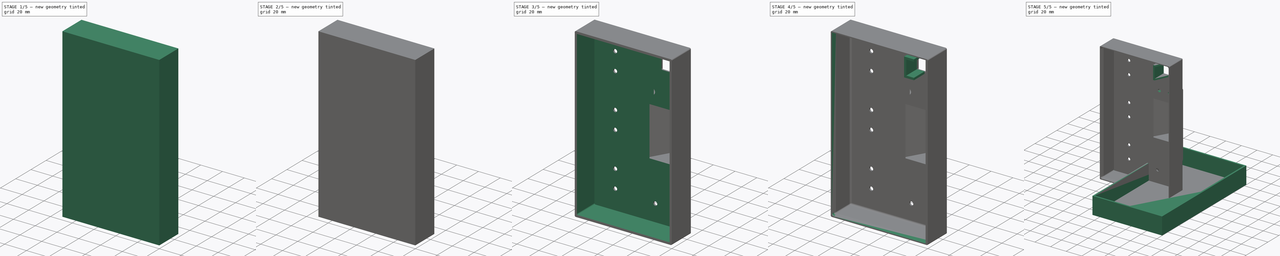
[diagram: build sequence overview — one tinted view per stage of 5, left to right]
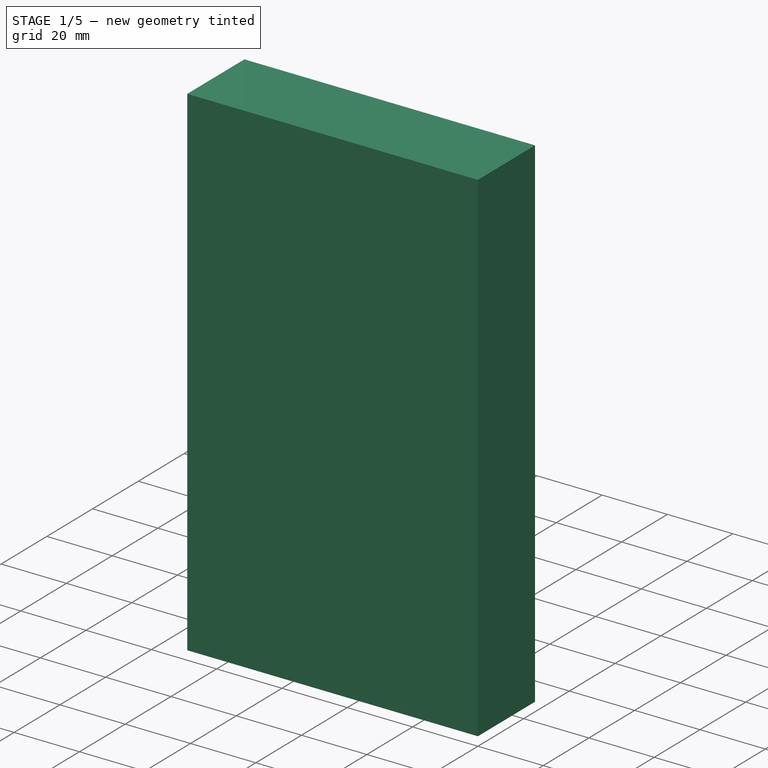
[diagram: stage 1 of 5 — iso view after this stage's code; geometry added in this stage tinted green]
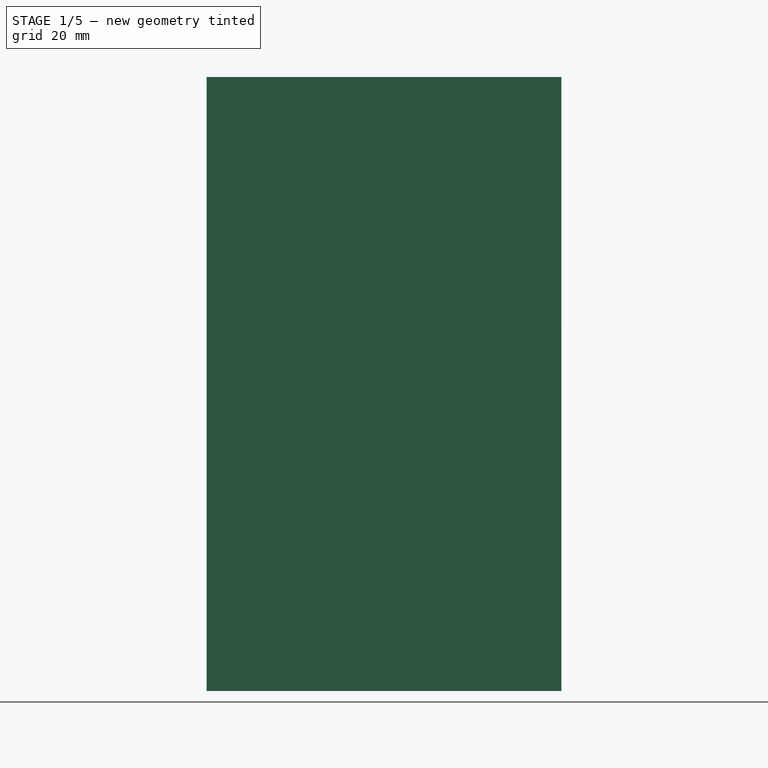
[diagram: stage 1 of 5 — front view after this stage's code; geometry added in this stage tinted green]
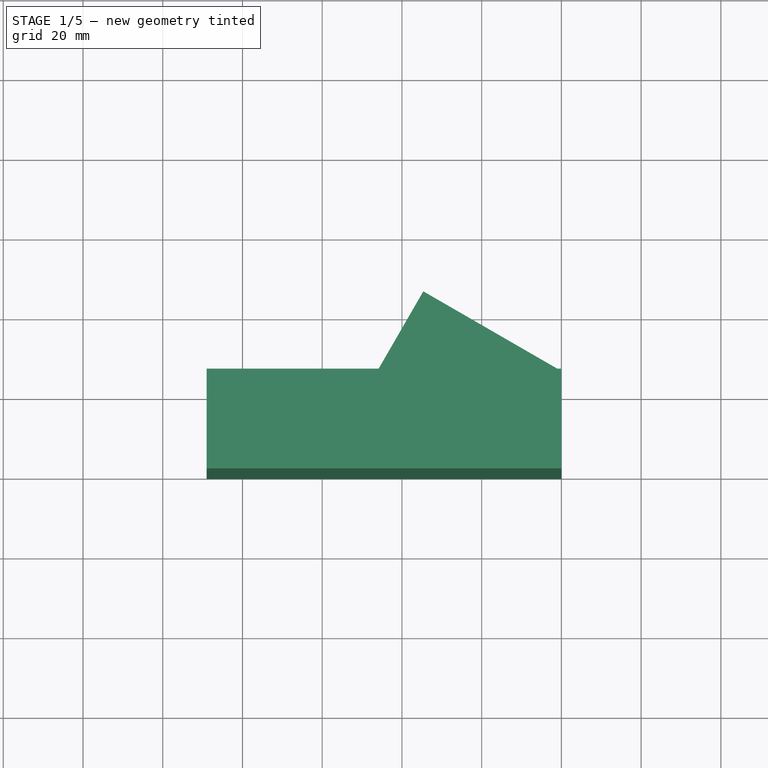
[diagram: stage 1 of 5 — top view after this stage's code; geometry added in this stage tinted green]
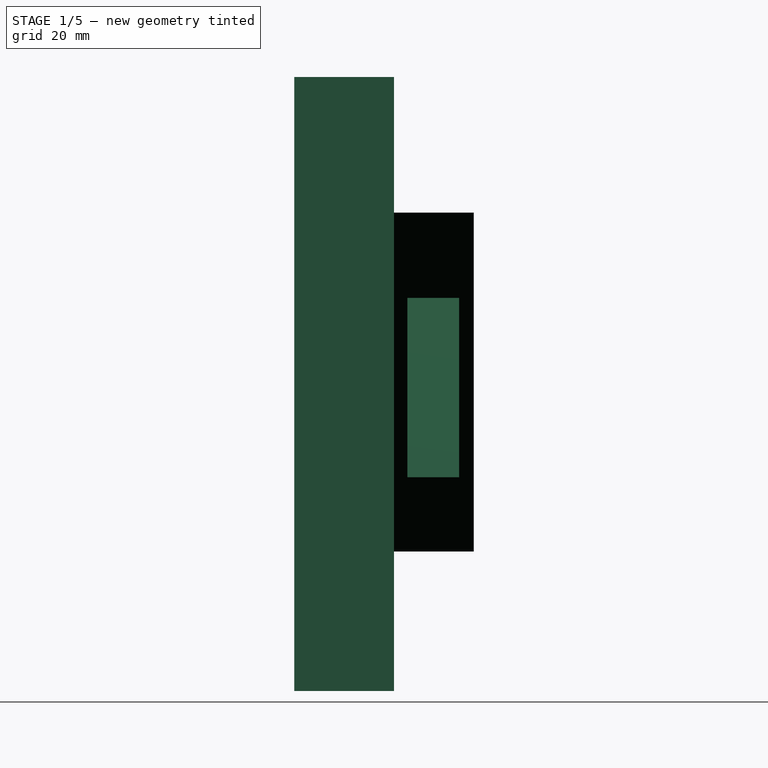
[diagram: stage 1 of 5 — right view after this stage's code; geometry added in this stage tinted green]
FCSTD DOCUMENT  (FreeCAD 0.20R29177 (Git))
Label: power_supply
License: All rights reserved
LicenseURL: http://en.wikipedia.org/wiki/All_rights_reserved
objects: Sketcher::SketchObject×10, PartDesign::Pocket×6, PartDesign::Pad×4, PartDesign::Plane×3, PartDesign::Fillet×3, PartDesign::Chamfer×3, PartDesign::Body×2, Spreadsheet::Sheet×1, PartDesign::SubtractiveBox×1, PartDesign::LinearPattern×1
note: 50 computed .brp shape members not serialized (recipe doc carries the construction recipe); baked Part::Feature solids carry a one-line shape summary decoded from their .brp

FEATURE [PartDesign::Body] Body
  Group = -> [Sketch,Pad,Sketch001,Pad001]
  Origin = -> Origin
  Tip = -> Pad001
FEATURE [Sketcher::SketchObject] Sketch002
  FullyConstrained = true
  MapMode = 5
  Support = -> [XY_Plane001]
  expr: Constraints[12] = <<Parameters>>.width + 2 * <<Parameters>>.thikness
  sketch-geometry (6):
    g0: LineSegment StartX=-89 StartY=0 StartZ=0 EndX=-89 EndY=25 EndZ=0
    g1: LineSegment StartX=-89 StartY=25 StartZ=0 EndX=-46.188 EndY=25 EndZ=0
    g2: LineSegment StartX=-46.188 StartY=25 StartZ=0 EndX=-34.641 EndY=45 EndZ=0
    g3: LineSegment StartX=-34.641 StartY=45 StartZ=0 EndX=0 EndY=25 EndZ=0
    g4: LineSegment StartX=0 StartY=25 StartZ=0 EndX=0 EndY=0 EndZ=0
    g5: LineSegment StartX=0 StartY=0 StartZ=0 EndX=-89 EndY=0 EndZ=0
  constraints (18):
    c: PointOnObject(g0,g-1)
    c: Vertical(g0)
    c: Coincident(g0,g1)
    c: Horizontal(g1)
    c: Coincident(g1,g2)
    c: Coincident(g2,g3)
    c: Coincident(g3,g4)
    c: Coincident(g4,g5)
    c: Coincident(g5,g0)
    c: Horizontal(g5)
    c: Vertical(g4)
    c: Equal(g4,g0)
    c: DistanceX(g5,g5) = 89
    c: DistanceY(g4,g4) = 25
    c: DistanceY(g3,g2) = 20
    c: Angle(g3,g5) = 0.523599
    c: Angle(g5,g2) = 1.0472
    c: DistanceX(g-1,g4) = 0
FEATURE [PartDesign::Pad] Pad002
  Direction = (0,0,1)
  Length = 154
  Length2 = 100
  Profile = -> Sketch002
  ReferenceAxis = -> Sketch002 [N_Axis]
  Type = 0
  expr: Length = <<Parameters>>.height + <<Parameters>>.thikness * 2
FEATURE [PartDesign::Plane] DatumPlane
  Length = 142.57
  MapMode = 5
  Placement = pos=(0,25,0) rot=(0,0.707107,0.707107;3.14159rad)
  ResizeMode = 0
  Support = -> [Pad002]
  Width = 207.57
FEATURE [PartDesign::SubtractiveBox] Box
  AttacherType = Attacher::AttachEngine3D
  AttachmentOffset = pos=(-47,25,0) rot=(0,0,1;0rad)
  BaseFeature = -> Pad002
  Height = 35
  Length = 50
  MapMode = 5
  Placement = pos=(-47,25,0) rot=(0,0,1;0rad)
  Support = -> [XY_Plane001]
  Width = 30
  expr: Length = <<Parameters>>.panel_height
  expr: Width = <<Parameters>>.panel_left_distance
FEATURE [PartDesign::LinearPattern] LinearPattern
  BaseFeature = -> Box
  Direction = -> Z_Axis001
  Length = 120
  Occurrences = 2
  Originals = -> [Box]
  Placement = pos=(-47,25,0) rot=(0,0,1;0rad)
FEATURE [PartDesign::Plane] DatumPlane001  label="KontrolPlane"
  Length = 164.67
  MapMode = 5
  Placement = pos=(-35.25,45.3516,0) rot=(0.186157,0.694747,0.694747;2.77349rad)
  ResizeMode = 0
  Support = -> [LinearPattern]
  Width = 209.943
FEATURE [Sketcher::SketchObject] Sketch003
  FullyConstrained = true
  MapMode = 5
  Placement = pos=(-35.25,45.3516,0) rot=(0.186157,0.694747,0.694747;2.77349rad)
  Support = -> [DatumPlane001]
  sketch-geometry (4):
    g0: LineSegment StartX=-34 StartY=53.6 StartZ=0 EndX=-8 EndY=53.6 EndZ=0
    g1: LineSegment StartX=-8 StartY=53.6 StartZ=0 EndX=-8 EndY=98.6 EndZ=0
    g2: LineSegment StartX=-8 StartY=98.6 StartZ=0 EndX=-34 EndY=98.6 EndZ=0
    g3: LineSegment StartX=-34 StartY=98.6 StartZ=0 EndX=-34 EndY=53.6 EndZ=0
  constraints (12):
    c: Coincident(g0,g1)
    c: Coincident(g1,g2)
    c: Coincident(g2,g3)
    c: Coincident(g3,g0)
    c: Horizontal(g0)
    c: Horizontal(g2)
    c: Vertical(g1)
    c: Vertical(g3)
    c: DistanceY(g-1,g0) = 53.6
    c: DistanceX(g2,g2) = 26
    c: DistanceY(g3,g3) = 45
    c: DistanceX(g0,g-1) = 8
FEATURE [PartDesign::Pocket] Pocket
  BaseFeature = -> LinearPattern
  Direction = (-0.5,-0.866025,2e-16)
  Length = 20
  Length2 = 5
  Placement = pos=(-47,25,0) rot=(0,0,1;0rad)
  Profile = -> Sketch003
  ReferenceAxis = -> Sketch003 [N_Axis]
  Type = 0
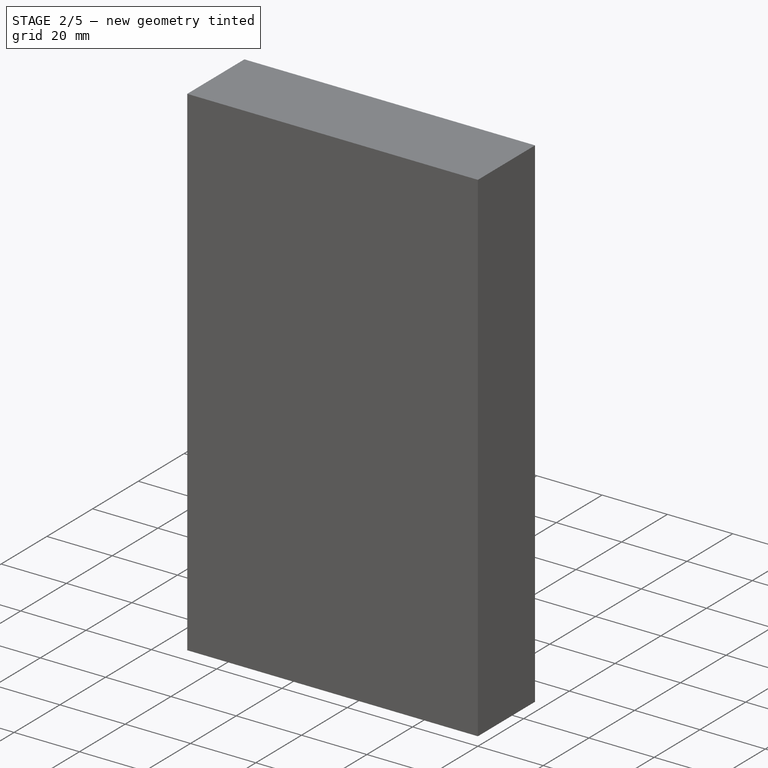
[diagram: stage 2 of 5 — iso view after this stage's code; geometry added in this stage tinted green]
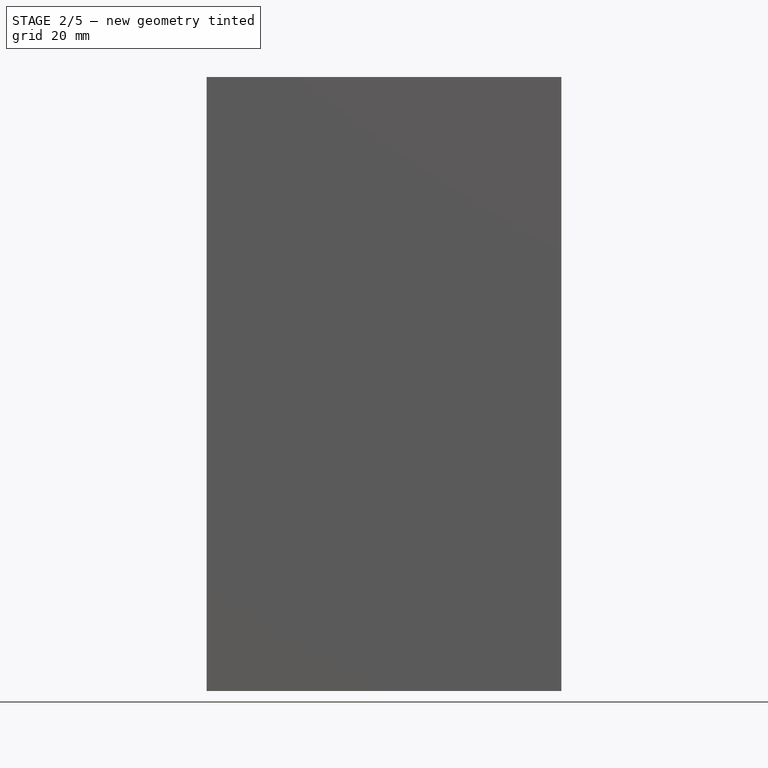
[diagram: stage 2 of 5 — front view after this stage's code; geometry added in this stage tinted green]
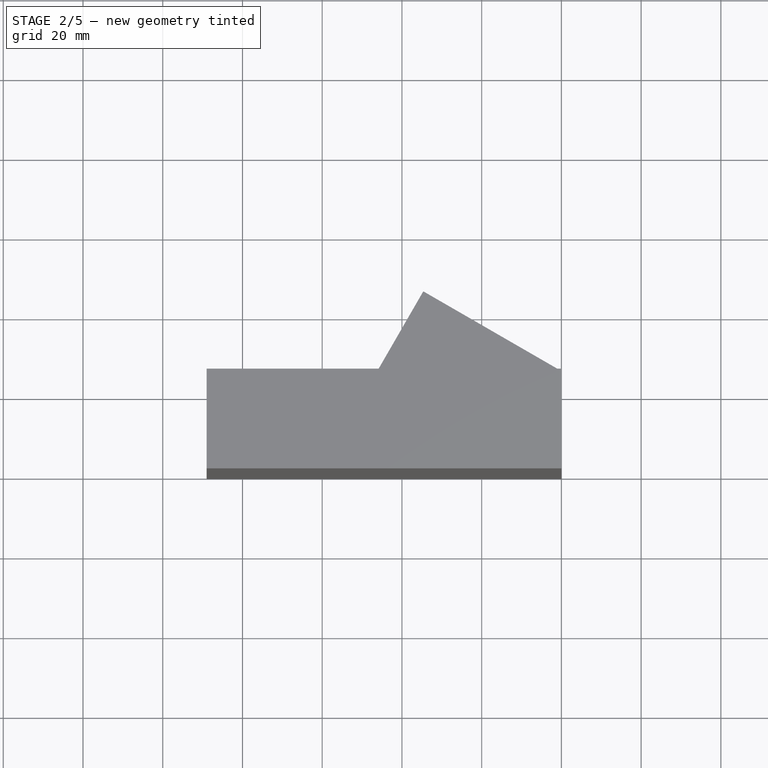
[diagram: stage 2 of 5 — top view after this stage's code; geometry added in this stage tinted green]
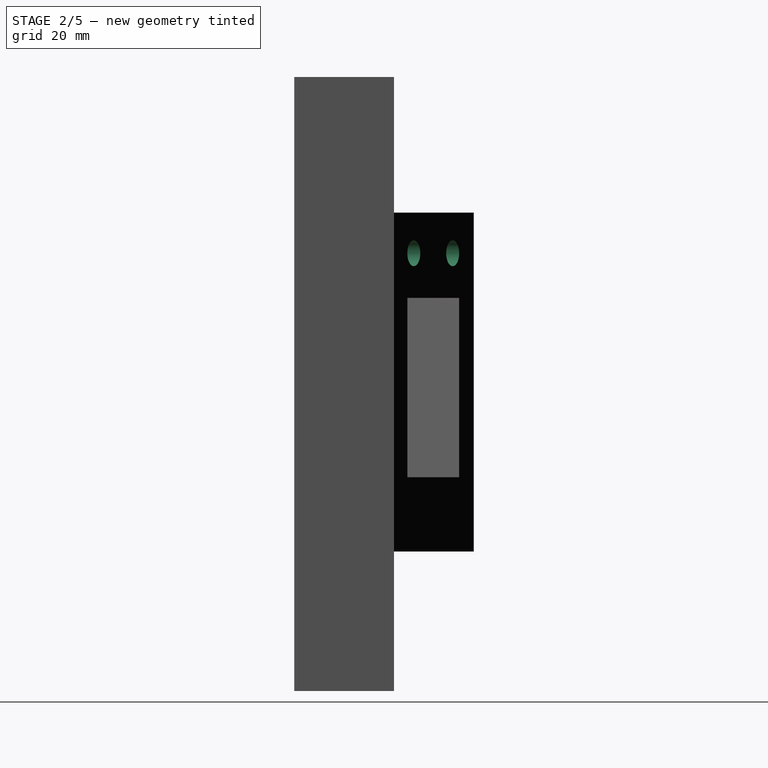
[diagram: stage 2 of 5 — right view after this stage's code; geometry added in this stage tinted green]
FEATURE [Sketcher::SketchObject] Sketch004
  ExternalGeometry = -> [Pocket]
  FullyConstrained = true
  MapMode = 5
  Placement = pos=(-35.25,45.3516,0) rot=(0.186157,0.694747,0.694747;2.77349rad)
  Support = -> [DatumPlane001]
  sketch-geometry (2):
    g0: Circle CenterX=-30.75 CenterY=109.8 CenterZ=0 NormalX=0 NormalY=0 NormalZ=1 AngleXU=0 Radius=3.25
    g1: Circle CenterX=-11.25 CenterY=109.8 CenterZ=0 NormalX=0 NormalY=0 NormalZ=1 AngleXU=0 Radius=3.25
  constraints (6):
    c: Equal(g0,g1)
    c: DistanceY(g-3,g0) = 11.2
    c: Diameter(g0) = 6.5
    c: DistanceX(g-4,g0) = 3.25
    c: DistanceY(g-3,g1) = 11.2
    c: DistanceX(g1,g-3) = 3.25
FEATURE [PartDesign::Pocket] Pocket001  label="RotartControlHole"
  BaseFeature = -> Pocket
  Direction = (-0.5,-0.866025,2e-16)
  Length = 18
  Length2 = 5
  Placement = pos=(-47,25,0) rot=(0,0,1;0rad)
  Profile = -> Sketch004
  ReferenceAxis = -> Sketch004 [N_Axis]
  Type = 0
FEATURE [Sketcher::SketchObject] Sketch005
  ExternalGeometry = -> [Pocket001]
  FullyConstrained = true
  MapMode = 5
  Placement = pos=(-47,25,0) rot=(0,0.707107,0.707107;3.14159rad)
  Support = -> [Pocket001]
  expr: Constraints[8] = <<Parameters>>.usb_hole_width
  expr: Constraints[9] = <<Parameters>>.usb_hole_height
  sketch-geometry (4):
    g0: LineSegment StartX=-37 StartY=130 StartZ=0 EndX=-21.5 EndY=130 EndZ=0
    g1: LineSegment StartX=-21.5 StartY=130 StartZ=0 EndX=-21.5 EndY=144 EndZ=0
    g2: LineSegment StartX=-21.5 StartY=144 StartZ=0 EndX=-37 EndY=144 EndZ=0
    g3: LineSegment StartX=-37 StartY=144 StartZ=0 EndX=-37 EndY=130 EndZ=0
  constraints (12):
    c: Coincident(g0,g1)
    c: Coincident(g1,g2)
    c: Coincident(g2,g3)
    c: Coincident(g3,g0)
    c: Horizontal(g0)
    c: Horizontal(g2)
    c: Vertical(g1)
    c: Vertical(g3)
    c: DistanceY(g3,g3) = 14
    c: DistanceX(g2,g2) = 15.5
    c: DistanceX(g-4,g0) = 10
    c: DistanceY(g-4,g0) = 10
FEATURE [PartDesign::Pocket] Pocket002  label="Usb"
  BaseFeature = -> Pocket001
  Direction = (0,-1,2e-16)
  Length = 17
  Length2 = 5
  Placement = pos=(-47,25,0) rot=(0,0,1;0rad)
  Profile = -> Sketch005
  ReferenceAxis = -> Sketch005 [N_Axis]
  Type = 0
  expr: Length = <<Parameters>>.usb_hole_dept
FEATURE [Sketcher::SketchObject] Sketch006
  ExternalGeometry = -> [Pocket002]
  FullyConstrained = true
  MapMode = 5
  Placement = pos=(-47,25,0) rot=(0,0.707107,0.707107;3.14159rad)
  Support = -> [Pocket002]
  sketch-geometry (8):
    g0: Circle CenterX=-15.812 CenterY=17.5 CenterZ=0 NormalX=0 NormalY=0 NormalZ=1 AngleXU=0 Radius=1.8
    g1: Circle CenterX=-31.962 CenterY=17.5 CenterZ=0 NormalX=0 NormalY=0 NormalZ=1 AngleXU=0 Radius=1.8
    g2: Circle CenterX=21 CenterY=20 CenterZ=0 NormalX=0 NormalY=0 NormalZ=1 AngleXU=0 Radius=1.8
    g3: Circle CenterX=21 CenterY=36.5 CenterZ=0 NormalX=0 NormalY=0 NormalZ=1 AngleXU=0 Radius=1.8
    g4: Circle CenterX=21 CenterY=68.75 CenterZ=0 NormalX=0 NormalY=0 NormalZ=1 AngleXU=0 Radius=1.8
    g5: Circle CenterX=21 CenterY=85.25 CenterZ=0 NormalX=0 NormalY=0 NormalZ=1 AngleXU=0 Radius=1.8
    g6: Circle CenterX=21 CenterY=117.5 CenterZ=0 NormalX=0 NormalY=0 NormalZ=1 AngleXU=0 Radius=1.8
    g7: Circle CenterX=21 CenterY=134 CenterZ=0 NormalX=0 NormalY=0 NormalZ=1 AngleXU=0 Radius=1.8
  constraints (25):
    c: Equal(g1,g0)
    c: Equal(g0,g2)
    c: Equal(g2,g3)
    c: Equal(g3,g4)
    c: Equal(g4,g5)
    c: Equal(g5,g6)
    c: Equal(g6,g7)
    c: DistanceX(g1,g0) = 16.15
    c: DistanceX(g2,g3) = 0
    c: DistanceX(g5,g4) = 0
    c: DistanceX(g7,g6) = 0
    c: DistanceX(g3,g4) = 0
    c: DistanceX(g6,g5) = 0
    c: DistanceY(g2,g3) = 16.5
    c: DistanceY(g4,g5) = 16.5
    c: DistanceY(g6,g7) = 16.5
    c: DistanceY(g-3,g2) = 20
    c: DistanceY(g7,g-4) = 20
    c: DistanceY(g3,g4) = 32.25
    c: DistanceX(g2,g-3) = 21
    c: Diameter(g1) = 3.6
    c: DistanceY(g0,g1) = 0
    c: DistanceY(g-6,g-6) = 35
    c: DistanceY(g-6,g0) = 17.5
    c: DistanceX(g0,g-6) = 15
FEATURE [PartDesign::Pocket] Pocket003  label="PowerJack"
  BaseFeature = -> Pocket002
  Direction = (0,-1,2e-16)
  Length = 5
  Length2 = 5
  Placement = pos=(-47,25,0) rot=(0,0,1;0rad)
  Profile = -> Sketch006
  ReferenceAxis = -> Sketch006 [N_Axis]
  Type = 0
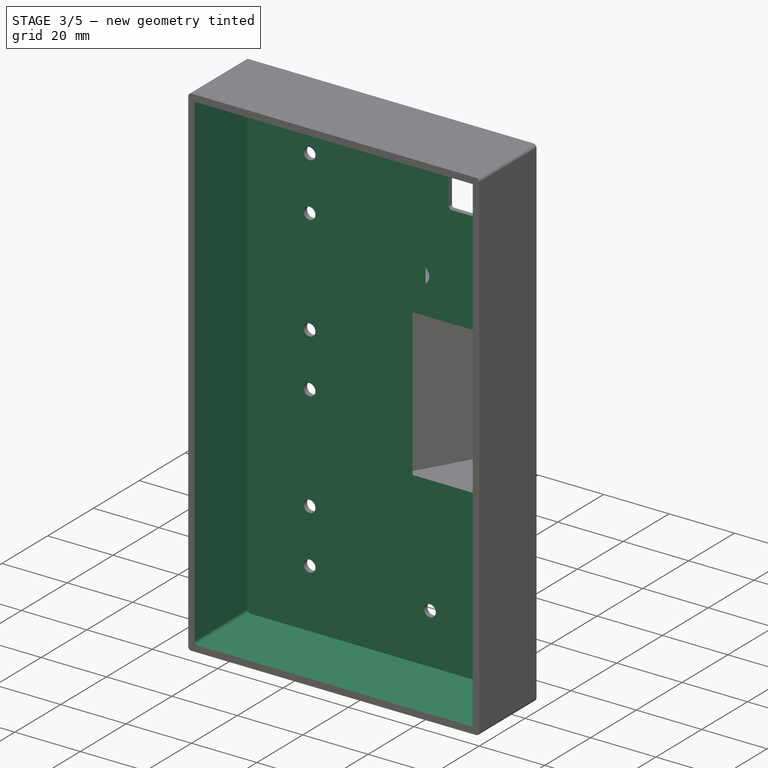
[diagram: stage 3 of 5 — iso view after this stage's code; geometry added in this stage tinted green]
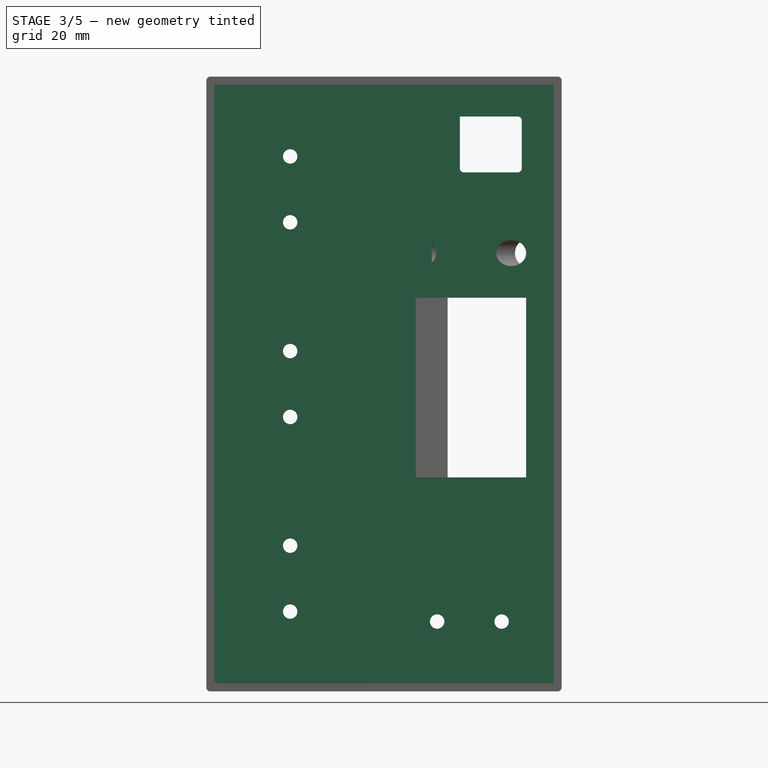
[diagram: stage 3 of 5 — front view after this stage's code; geometry added in this stage tinted green]
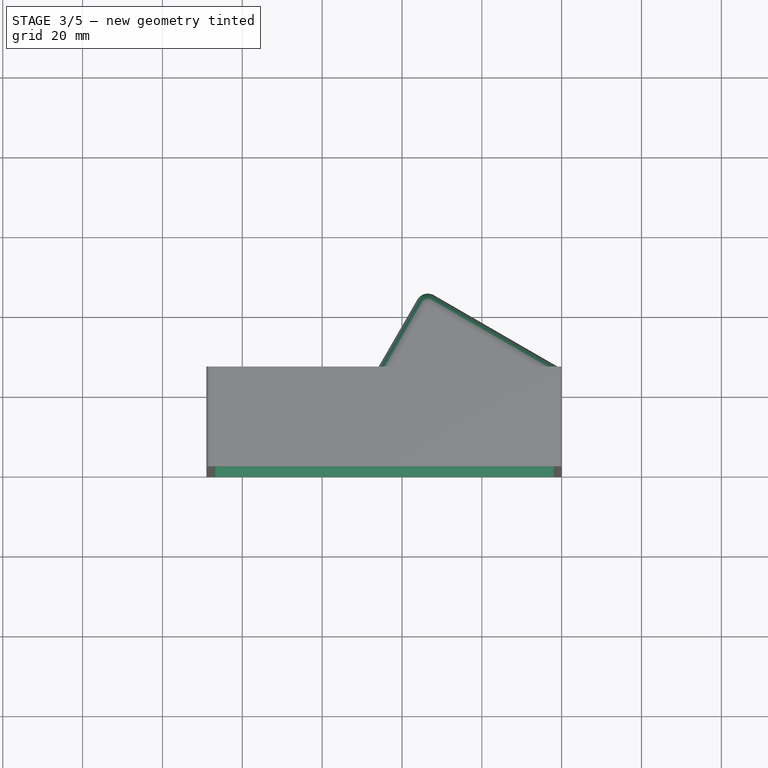
[diagram: stage 3 of 5 — top view after this stage's code; geometry added in this stage tinted green]
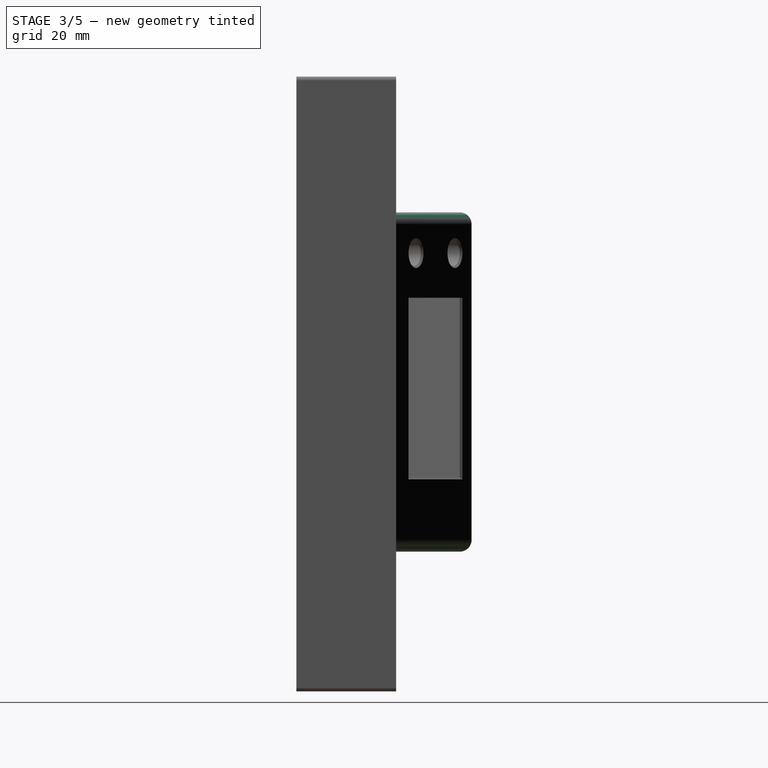
[diagram: stage 3 of 5 — right view after this stage's code; geometry added in this stage tinted green]
FEATURE [Sketcher::SketchObject] Sketch007
  ExternalGeometry = -> [Pocket003]
  FullyConstrained = true
  MapMode = 5
  Placement = pos=(-47,0,0) rot=(1,0,0;1.5708rad)
  Support = -> [Pocket003]
  expr: Constraints[10] = <<Parameters>>.thikness
  expr: Constraints[11] = <<Parameters>>.thikness
  expr: Constraints[8] = <<Parameters>>.thikness
  expr: Constraints[9] = <<Parameters>>.thikness
  sketch-geometry (4):
    g0: LineSegment StartX=-40 StartY=152 StartZ=0 EndX=45 EndY=152 EndZ=0
    g1: LineSegment StartX=45 StartY=152 StartZ=0 EndX=45 EndY=2 EndZ=0
    g2: LineSegment StartX=45 StartY=2 StartZ=0 EndX=-40 EndY=2 EndZ=0
    g3: LineSegment StartX=-40 StartY=2 StartZ=0 EndX=-40 EndY=152 EndZ=0
  constraints (12):
    c: Coincident(g0,g1)
    c: Coincident(g1,g2)
    c: Coincident(g2,g3)
    c: Coincident(g3,g0)
    c: Horizontal(g0)
    c: Horizontal(g2)
    c: Vertical(g1)
    c: Vertical(g3)
    c: DistanceX(g-4,g0) = 2
    c: DistanceY(g0,g-4) = 2
    c: DistanceY(g-3,g1) = 2
    c: DistanceX(g1,g-3) = 2
FEATURE [PartDesign::Pocket] Pocket004  label="Back"
  BaseFeature = -> Pocket003
  Direction = (0,1,-2e-16)
  Length = 23
  Length2 = 5
  Placement = pos=(-47,25,0) rot=(0,0,1;0rad)
  Profile = -> Sketch007
  ReferenceAxis = -> Sketch007 [N_Axis]
  Type = 0
FEATURE [PartDesign::Fillet] Fillet  label="Panel"
  Base = -> Pocket004 [Edge45,Edge67,Edge44,Edge46,Edge68]
  BaseFeature = -> Pocket004
  Placement = pos=(-47,25,0) rot=(0,0,1;0rad)
  Radius = 3
  SupportTransform = false
  UseAllEdges = false
FEATURE [PartDesign::Chamfer] Chamfer
  Angle = 45
  Base = -> Fillet [Edge104,Edge103,Edge37,Edge38,Edge36,Edge39,Edge11,Edge12,Edge13,Edge14,Edge15,Edge16,Edge28,Edge27,Edge106,Edge107,Edge109,Edge108,Edge105]
  BaseFeature = -> Fillet
  ChamferType = 0
  FlipDirection = false
  Placement = pos=(-47,25,0) rot=(0,0,1;0rad)
  Size = 0.5
  Size2 = 1
  SupportTransform = false
  UseAllEdges = false
FEATURE [PartDesign::Fillet] Fillet001  label="Corner"
  Base = -> Chamfer [Edge48,Edge45,Edge47,Edge44,Edge135,Edge137,Edge136,Edge134]
  BaseFeature = -> Chamfer
  Placement = pos=(-47,25,0) rot=(0,0,1;0rad)
  Radius = 1
  SupportTransform = false
  UseAllEdges = false
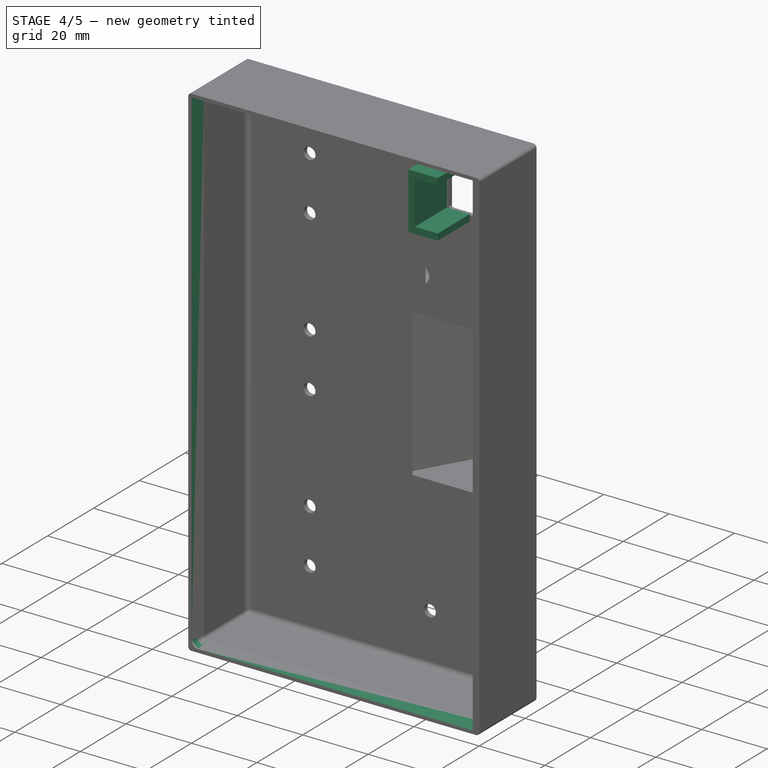
[diagram: stage 4 of 5 — iso view after this stage's code; geometry added in this stage tinted green]
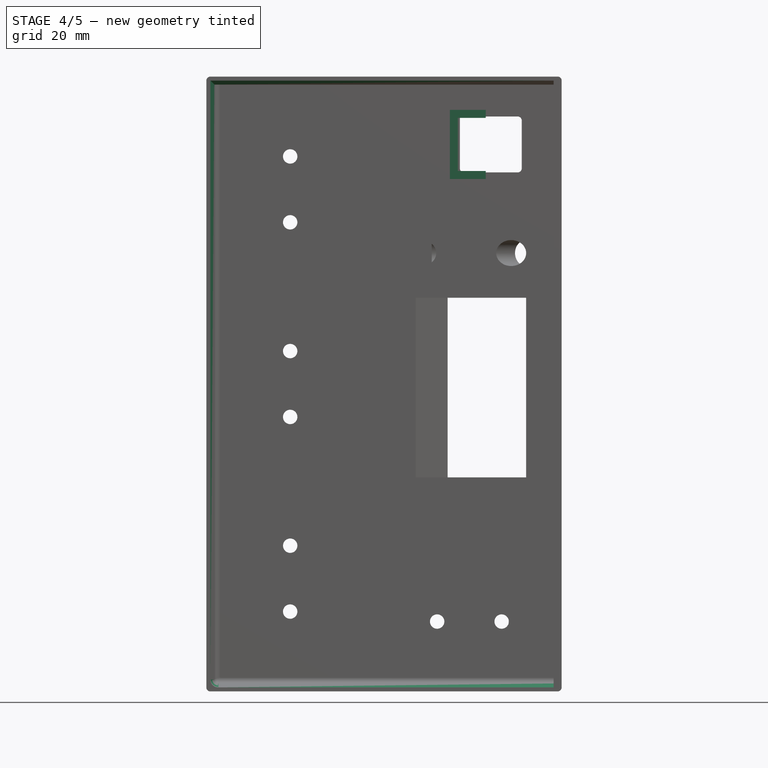
[diagram: stage 4 of 5 — front view after this stage's code; geometry added in this stage tinted green]
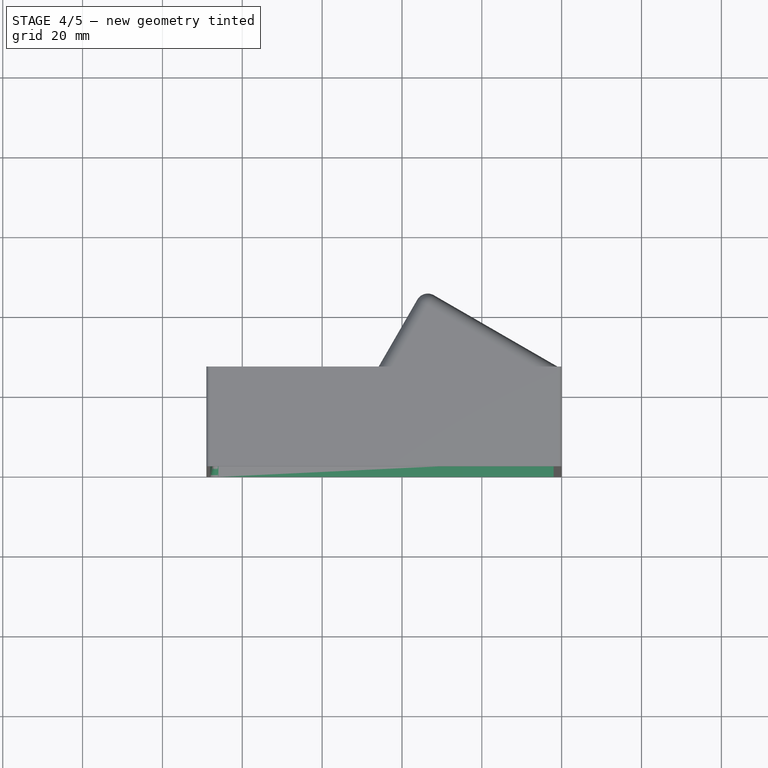
[diagram: stage 4 of 5 — top view after this stage's code; geometry added in this stage tinted green]
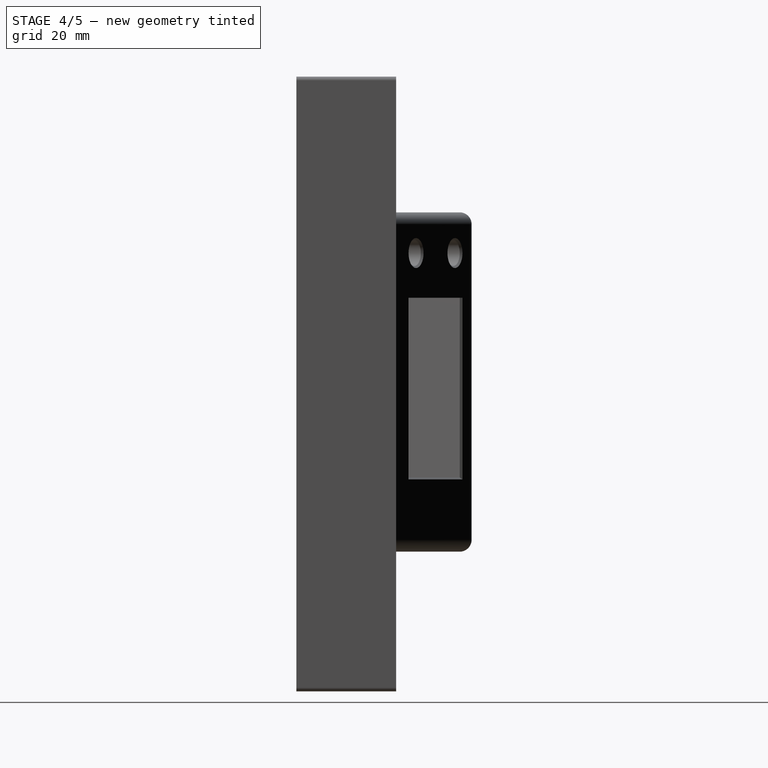
[diagram: stage 4 of 5 — right view after this stage's code; geometry added in this stage tinted green]
FEATURE [PartDesign::Chamfer] Chamfer001  label="BackFill"
  Angle = 45
  Base = -> Fillet001 [Edge73,Edge72,Edge75,Edge74]
  BaseFeature = -> Fillet001
  ChamferType = 1
  FlipDirection = false
  Placement = pos=(-47,25,0) rot=(0,0,1;0rad)
  Size = 1
  Size2 = 4
  SupportTransform = false
  UseAllEdges = false
FEATURE [PartDesign::Fillet] Fillet002
  Base = -> Chamfer001 [Edge56]
  BaseFeature = -> Chamfer001
  Placement = pos=(-47,25,0) rot=(0,0,1;0rad)
  Radius = 1.5
  SupportTransform = false
  UseAllEdges = false
FEATURE [Sketcher::SketchObject] Sketch009
  AttachmentOffset = pos=(0,0,-23) rot=(0,0,1;0rad)
  FullyConstrained = true
  MapMode = 5
  Placement = pos=(0,23,5.1e-15) rot=(1,0,0;1.5708rad)
  Support = -> [XZ_Plane001]
  sketch-geometry (8):
    g0: LineSegment StartX=-26 StartY=130.35 StartZ=0 EndX=-26 EndY=143.65 EndZ=0
    g1: LineSegment StartX=-26 StartY=130.35 StartZ=0 EndX=-19 EndY=130.35 EndZ=0
    g2: LineSegment StartX=-19 StartY=130.35 StartZ=0 EndX=-19 EndY=128.35 EndZ=0
    g3: LineSegment StartX=-19 StartY=128.35 StartZ=0 EndX=-28 EndY=128.35 EndZ=0
    g4: LineSegment StartX=-26 StartY=143.65 StartZ=0 EndX=-19 EndY=143.65 EndZ=0
    g5: LineSegment StartX=-19 StartY=143.65 StartZ=0 EndX=-19 EndY=145.65 EndZ=0
    g6: LineSegment StartX=-19 StartY=145.65 StartZ=0 EndX=-28 EndY=145.65 EndZ=0
    g7: LineSegment StartX=-28 StartY=145.65 StartZ=0 EndX=-28 EndY=128.35 EndZ=0
  constraints (24):
    c: Vertical(g0)
    c: Coincident(g1,g2)
    c: Coincident(g2,g3)
    c: Horizontal(g1)
    c: Horizontal(g3)
    c: Vertical(g2)
    c: Coincident(g4,g5)
    c: Coincident(g5,g6)
    c: Coincident(g6,g7)
    c: Horizontal(g4)
    c: Horizontal(g6)
    c: Vertical(g5)
    c: Vertical(g7)
    c: DistanceX(g3,g3) = 9
    c: DistanceX(g6,g6) = 9
    c: DistanceY(g0,g0) = 13.3
    c: DistanceY(g2,g2) = 2
    c: DistanceY(g5,g5) = 2
    c: DistanceX(g0,g-1) = 26
    c: Coincident(g4,g0)
    c: Coincident(g1,g0)
    c: DistanceX(g3,g0) = 2
    c: DistanceY(g-1,g0) = 130.35
    c: Coincident(g7,g3)
FEATURE [PartDesign::Pad] Pad004
  BaseFeature = -> Fillet002
  Direction = (0,-1,-2e-16)
  Length = 14
  Length2 = 10
  Placement = pos=(-47,25,0) rot=(0,0,1;0rad)
  Profile = -> Sketch009
  ReferenceAxis = -> Sketch009 [N_Axis]
  Type = 0
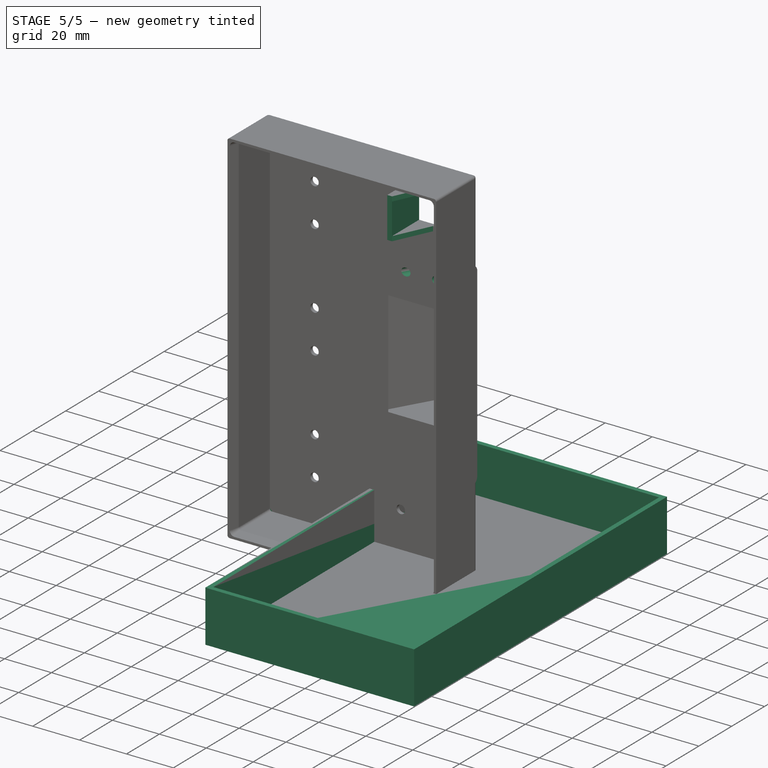
[diagram: stage 5 of 5 — iso view after this stage's code; geometry added in this stage tinted green]
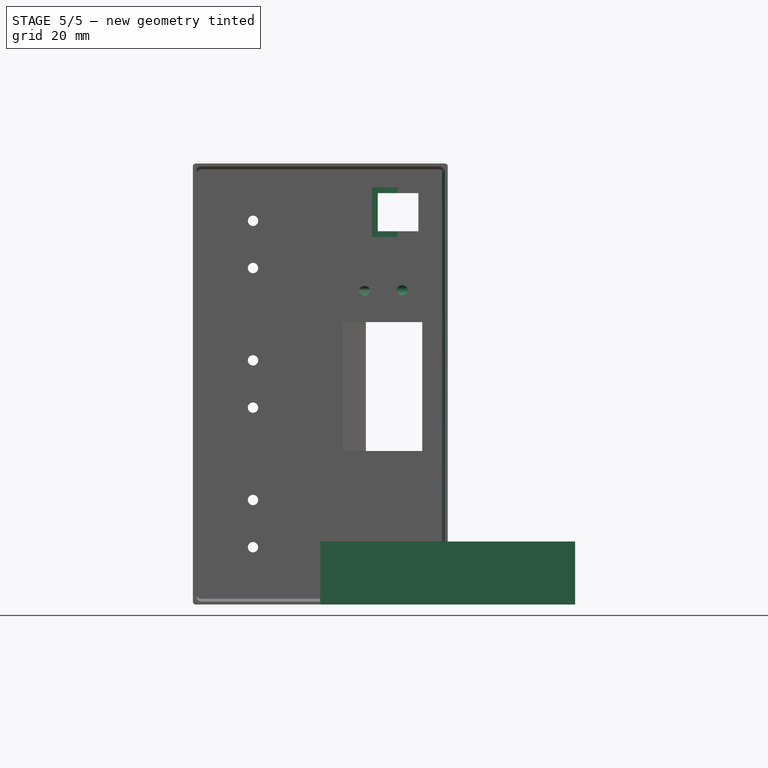
[diagram: stage 5 of 5 — front view after this stage's code; geometry added in this stage tinted green]
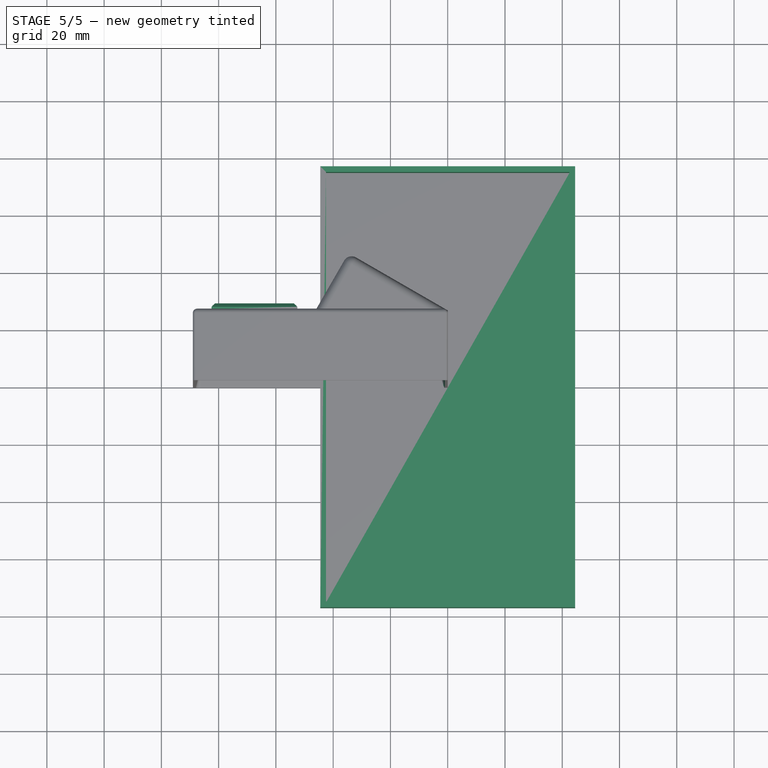
[diagram: stage 5 of 5 — top view after this stage's code; geometry added in this stage tinted green]
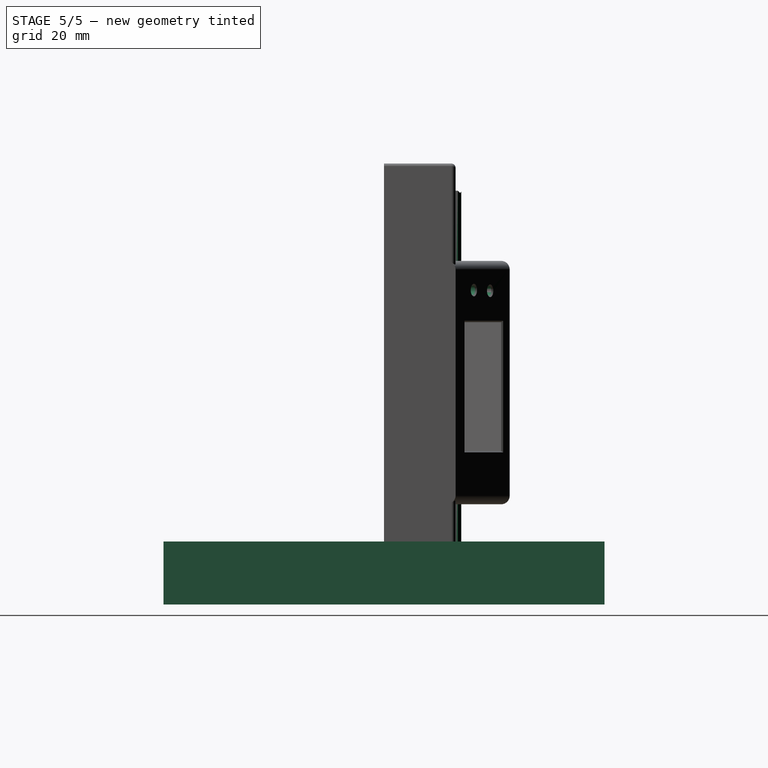
[diagram: stage 5 of 5 — right view after this stage's code; geometry added in this stage tinted green]
FEATURE [Sketcher::SketchObject] Sketch
  FullyConstrained = true
  MapMode = 5
  Support = -> [XY_Plane]
  expr: Constraints[10] = (<<Parameters>>.width + 2 * <<Parameters>>.thikness) / 2
  expr: Constraints[11] = (<<Parameters>>.height + 2 * <<Parameters>>.thikness) / 2
  expr: Constraints[8] = <<Parameters>>.width + 2 * <<Parameters>>.thikness
  expr: Constraints[9] = <<Parameters>>.height + 2 * <<Parameters>>.thikness
  sketch-geometry (4):
    g0: LineSegment StartX=-44.5 StartY=77 StartZ=0 EndX=44.5 EndY=77 EndZ=0
    g1: LineSegment StartX=44.5 StartY=77 StartZ=0 EndX=44.5 EndY=-77 EndZ=0
    g2: LineSegment StartX=44.5 StartY=-77 StartZ=0 EndX=-44.5 EndY=-77 EndZ=0
    g3: LineSegment StartX=-44.5 StartY=-77 StartZ=0 EndX=-44.5 EndY=77 EndZ=0
  constraints (12):
    c: Coincident(g0,g1)
    c: Coincident(g1,g2)
    c: Coincident(g2,g3)
    c: Coincident(g3,g0)
    c: Horizontal(g0)
    c: Horizontal(g2)
    c: Vertical(g1)
    c: Vertical(g3)
    c: DistanceX(g0,g0) = 89
    c: DistanceY(g1,g1) = 154
    c: DistanceX(g0,g-1) = 44.5
    c: DistanceY(g1,g-1) = 77
FEATURE [Spreadsheet::Sheet] Spreadsheet  label="Parameters"
  cells = A1=width; B1(width)=85; A2=height; B2(height)=150; A3=thikness; B3(thikness)=2; A4=length; B4(length)=150; A5=led_width; B5(led_width)=44.8; A6=led_height; B6(led_height)=25.8; A7=led_dept; B7(led_dept)=14.9; A8=usb_hole_width; B8(usb_hole_width)=14; A9=usb_hole_height; B9(usb_hole_height)=15.5; A10=usb_hole_dept; B10(usb_hole_dept)=17; A11=panel_left_distance; B11(panel_left_distance)=30; A12=panel_height; B12(panel_height)=50
FEATURE [PartDesign::Pad] Pad
  Direction = (0,0,1)
  Length = 2
  Length2 = 100
  Profile = -> Sketch
  Type = 0
  expr: Length = <<Parameters>>.thikness
FEATURE [Sketcher::SketchObject] Sketch001
  ExternalGeometry = -> [Pad]
  FullyConstrained = true
  MapMode = 5
  Placement = pos=(0,0,2) rot=(0,0,1;0rad)
  Support = -> [Pad]
  expr: Constraints[18] = <<Parameters>>.thikness
  expr: Constraints[19] = <<Parameters>>.thikness
  expr: Constraints[20] = <<Parameters>>.thikness
  expr: Constraints[21] = <<Parameters>>.thikness
  sketch-geometry (8):
    g0: LineSegment StartX=-44.5 StartY=77 StartZ=0 EndX=44.5 EndY=77 EndZ=0
    g1: LineSegment StartX=44.5 StartY=77 StartZ=0 EndX=44.5 EndY=-77 EndZ=0
    g2: LineSegment StartX=44.5 StartY=-77 StartZ=0 EndX=-44.5 EndY=-77 EndZ=0
    g3: LineSegment StartX=-44.5 StartY=-77 StartZ=0 EndX=-44.5 EndY=77 EndZ=0
    g4: LineSegment StartX=-42.5 StartY=75 StartZ=0 EndX=42.5 EndY=75 EndZ=0
    g5: LineSegment StartX=42.5 StartY=75 StartZ=0 EndX=42.5 EndY=-75 EndZ=0
    g6: LineSegment StartX=42.5 StartY=-75 StartZ=0 EndX=-42.5 EndY=-75 EndZ=0
    g7: LineSegment StartX=-42.5 StartY=-75 StartZ=0 EndX=-42.5 EndY=75 EndZ=0
  constraints (22):
    c: Coincident(g0,g1)
    c: Coincident(g1,g2)
    c: Coincident(g2,g3)
    c: Coincident(g3,g0)
    c: Horizontal(g0)
    c: Horizontal(g2)
    c: Vertical(g1)
    c: Vertical(g3)
    c: Coincident(g0,g-3)
    c: Coincident(g1,g-4)
    c: Coincident(g4,g5)
    c: Coincident(g5,g6)
    c: Coincident(g6,g7)
    c: Coincident(g7,g4)
    c: Horizontal(g4)
    c: Horizontal(g6)
    c: Vertical(g5)
    c: Vertical(g7)
    c: DistanceY(g1,g5) = 2
    c: DistanceX(g5,g1) = 2
    c: DistanceY(g4,g0) = 2
    c: DistanceX(g0,g4) = 2
FEATURE [PartDesign::Pad] Pad001
  BaseFeature = -> Pad
  Direction = (0,0,1)
  Length = 20
  Length2 = 100
  Profile = -> Sketch001
  Type = 0
FEATURE [Sketcher::SketchObject] Sketch010
  ExternalGeometry = -> [Pad004]
  FullyConstrained = true
  MapMode = 5
  Placement = pos=(-47,25,128.35) rot=(1,0,0;3.14159rad)
  Support = -> [Pad004]
  sketch-geometry (3):
    g0: LineSegment StartX=22.559 StartY=17 StartZ=0 EndX=29.5327 EndY=2 EndZ=0
    g1: LineSegment StartX=29.5327 StartY=2 StartZ=0 EndX=29.5327 EndY=17 EndZ=0
    g2: LineSegment StartX=29.5327 StartY=17 StartZ=0 EndX=22.559 EndY=17 EndZ=0
  constraints (6):
    c: Coincident(g-3,g0)
    c: Coincident(g0,g-5)
    c: Coincident(g0,g1)
    c: Coincident(g1,g-4)
    c: Coincident(g1,g2)
    c: Coincident(g2,g0)
FEATURE [PartDesign::Pocket] Pocket005
  BaseFeature = -> Pad004
  Direction = (0,-2e-16,1)
  Length = 18
  Length2 = 5
  Placement = pos=(-47,25,0) rot=(0,0,1;0rad)
  Profile = -> Sketch010
  ReferenceAxis = -> Sketch010 [N_Axis]
  Type = 0
FEATURE [PartDesign::Chamfer] Chamfer002
  Angle = 45
  Base = -> Pocket005 [Face97,Face96,Face95]
  BaseFeature = -> Pocket005
  ChamferType = 0
  FlipDirection = false
  Placement = pos=(-47,25,0) rot=(0,0,1;0rad)
  Size = 1.2
  Size2 = 1
  SupportTransform = false
  UseAllEdges = false
FEATURE [PartDesign::Plane] DatumPlane002
  AttachmentOffset = pos=(-6,0,-2) rot=(0,0,1;0rad)
  Length = 164.67
  MapMode = 45
  Placement = pos=(-22.2176,35.5179,77.5) rot=(-0.935113,0.250563,-0.250563;1.63783rad)
  ResizeMode = 0
  Support = -> [Chamfer002]
  Width = 209.943
FEATURE [PartDesign::Body] Body001  label="Side"
  Group = -> [Sketch002,Pad002,DatumPlane,Box,LinearPattern,DatumPlane001,Sketch003,Pocket,Sketch004,Pocket001,Sketch005,Pocket002,Sketch006,Pocket003,Sketch007,Pocket004,Fillet,Chamfer,Fillet001,Chamfer001,Fillet002,Sketch009,Pad004,Sketch010,DatumPlane002,Pocket005,Chamfer002]
  Origin = -> Origin001
  Tip = -> Pad004
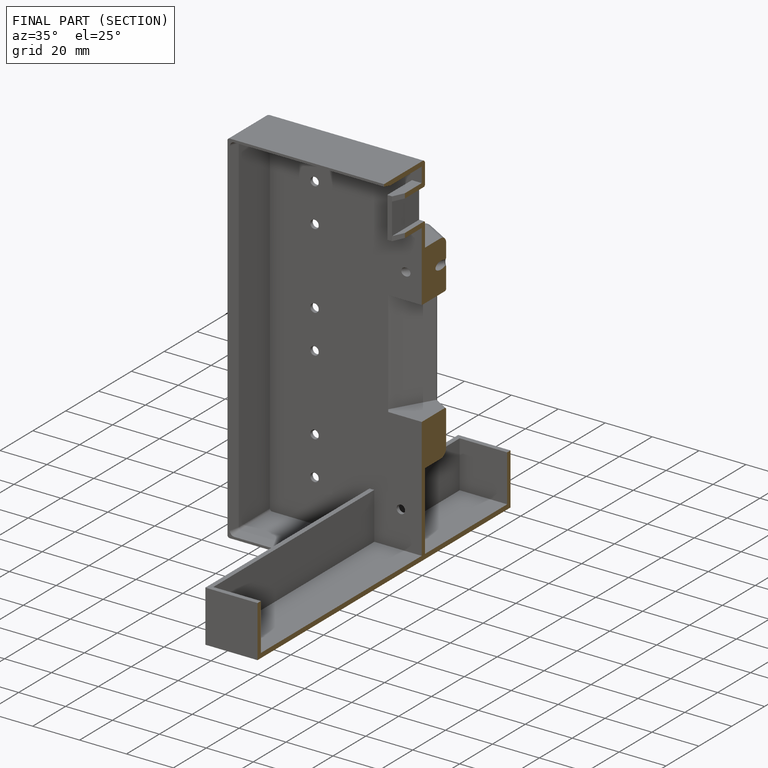
[diagram: finished part — half-section view (interior)]
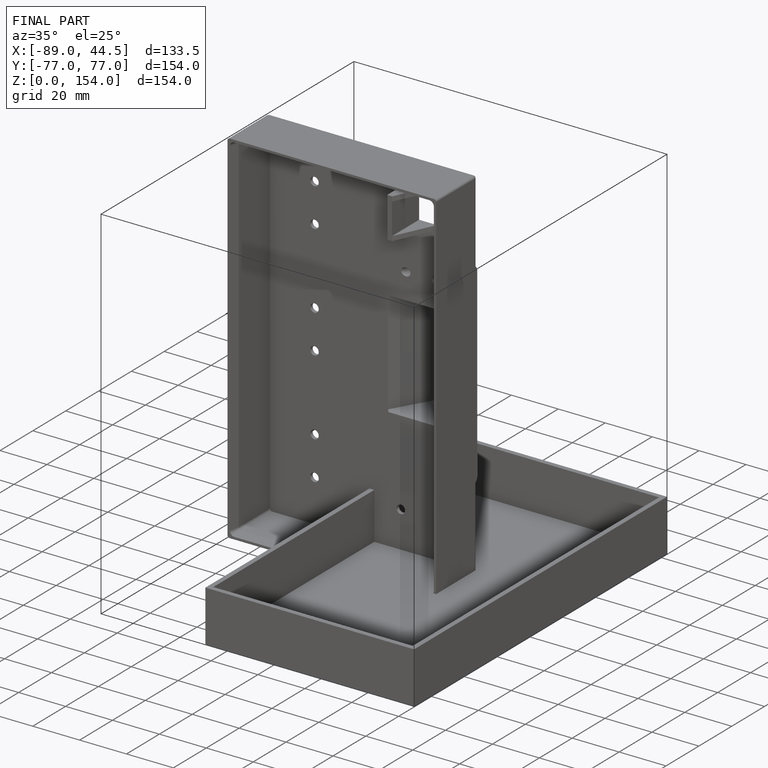
[diagram: finished part — iso view with bounding-box wireframe]
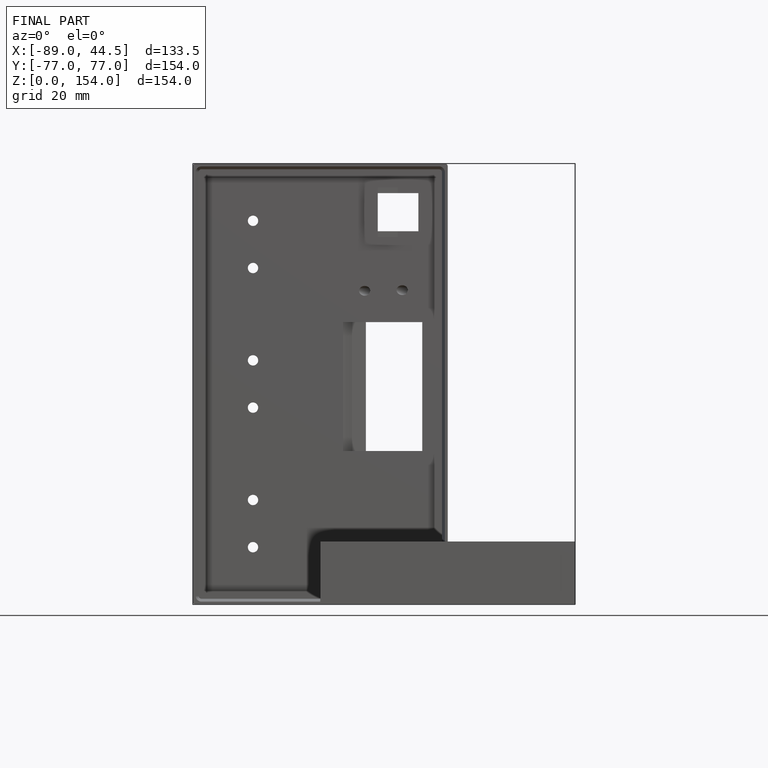
[diagram: finished part — front view with bounding-box wireframe]
